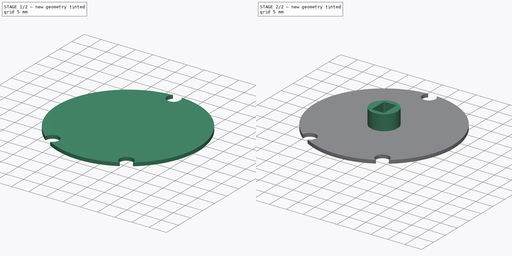
[diagram: build sequence overview — one tinted view per stage of 2, left to right]
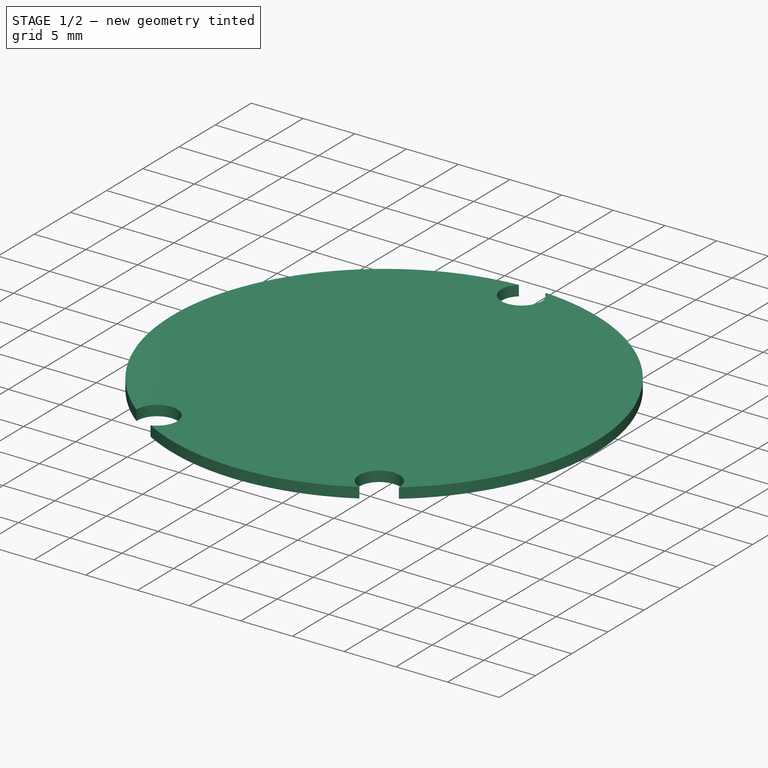
[diagram: stage 1 of 2 — iso view after this stage's code; geometry added in this stage tinted green]
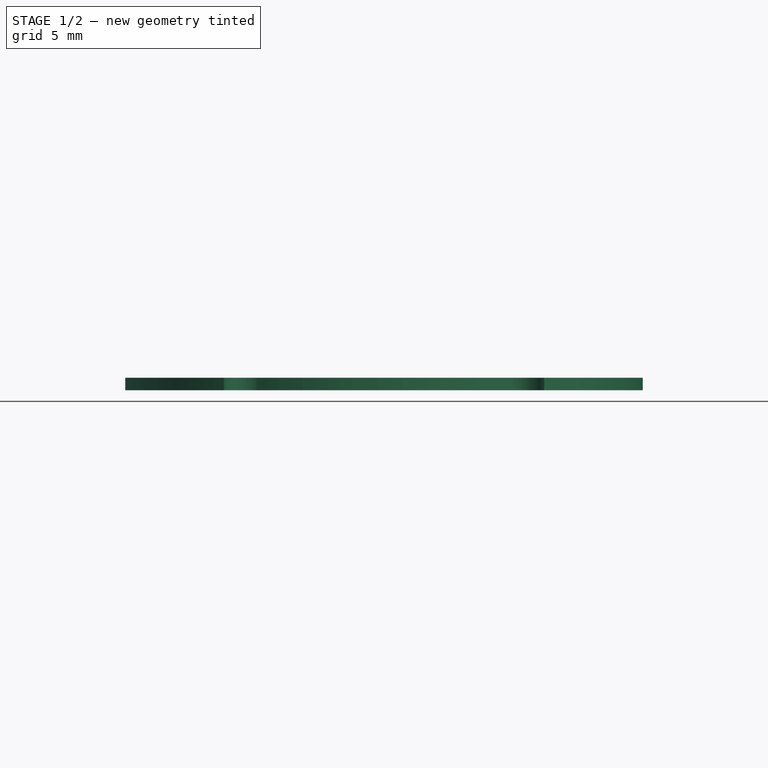
[diagram: stage 1 of 2 — front view after this stage's code; geometry added in this stage tinted green]
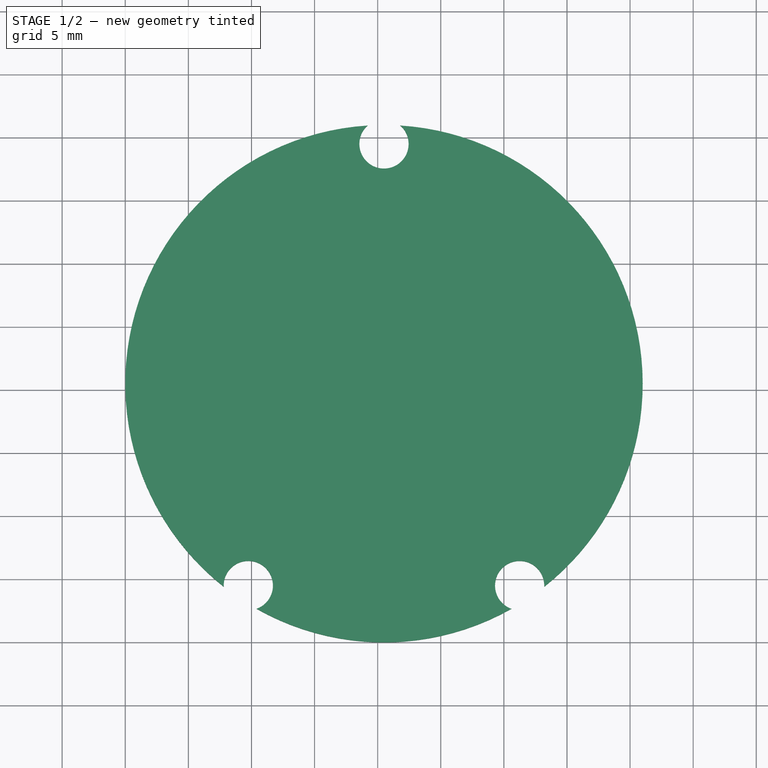
[diagram: stage 1 of 2 — top view after this stage's code; geometry added in this stage tinted green]
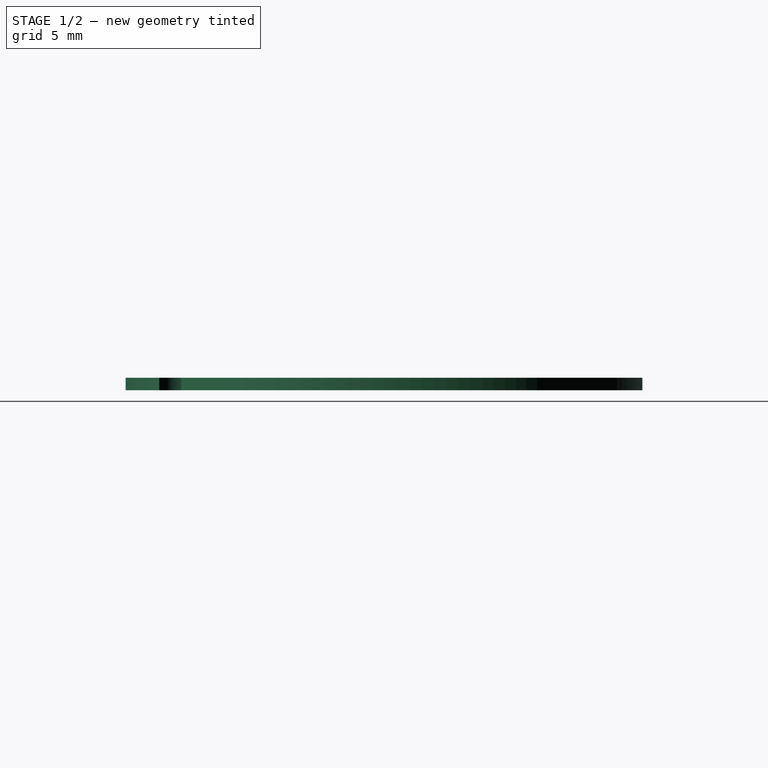
[diagram: stage 1 of 2 — right view after this stage's code; geometry added in this stage tinted green]
FCSTD DOCUMENT  (FreeCAD 1.0R39319 (Git))
Label: drive_shaft
License: All rights reserved
LicenseURL: http://en.wikipedia.org/wiki/All_rights_reserved
objects: Sketcher::SketchObject×4, PartDesign::Pad×2, Spreadsheet::Sheet×1, PartDesign::Hole×1, PartDesign::Pocket×1, PartDesign::Body×1
note: 21 computed .brp shape members not serialized (recipe doc carries the construction recipe); baked Part::Feature solids carry a one-line shape summary decoded from their .brp

FEATURE [Sketcher::SketchObject] Sketch  label="hub"
  ArcFitTolerance = 1e-06
  AttachmentSupport = -> [XY_Plane]
  FullyConstrained = true
  MakeInternals = false
  MapMode = 5
  expr: Constraints[0] = Spreadsheet.hub_diameter
  expr: Constraints[1] = Spreadsheet.hub_diameter / 2
  expr: Constraints[2] = Spreadsheet.hub_diameter / 2
  sketch-geometry (1):
    g0: Circle CenterX=20.5 CenterY=20.5 CenterZ=0 NormalX=0 NormalY=0 NormalZ=1 AngleXU=0 Radius=20.5
  constraints (3):
    c: Diameter(g0) = 41
    c: DistanceY(g-1,g0) = 20.5
    c: DistanceX(g-1,g0) = 20.5
FEATURE [Spreadsheet::Sheet] Spreadsheet
  cells = A2='hub_diameter; B2(hub_diameter)=41; A3='hex_lock_depth; B3(hex_lock_depth)=10.25; A4='hex_lock_y; B4(hex_lock_y)=6.6; A5='hex_lock_width; B5(hex_lock_x)=7.62; A6='mnt_hole_width; B6(mnt_hole_width)=21.5; A7='mnt_hole_height; B7(mnt_hole_height)=35; A8='mnt_hole_radius; B8(mnt_hole_radius)=1.5
FEATURE [Sketcher::SketchObject] Sketch002  label="mounting_screws"
  ArcFitTolerance = 1e-06
  AttachmentSupport = -> [XY_Plane]
  FullyConstrained = true
  MakeInternals = false
  MapMode = 5
  expr: Constraints[2] = Spreadsheet.mnt_hole_width
  expr: Constraints[3] = Spreadsheet.mnt_hole_height
  expr: Constraints[5] = Spreadsheet.mnt_hole_width / 2
  expr: Constraints[6] = Spreadsheet.mnt_hole_radius
  expr: Constraints[7] = Spreadsheet.hub_diameter - Spreadsheet.mnt_hole_radius
  expr: Constraints[8] = Spreadsheet.hub_diameter / 2
  sketch-geometry (3):
    g0: Circle CenterX=9.75 CenterY=4.5 CenterZ=0 NormalX=0 NormalY=0 NormalZ=1 AngleXU=0 Radius=1.5
    g1: Circle CenterX=31.25 CenterY=4.5 CenterZ=0 NormalX=0 NormalY=0 NormalZ=1 AngleXU=0 Radius=1.5
    g2: Circle CenterX=20.5 CenterY=39.5 CenterZ=0 NormalX=0 NormalY=0 NormalZ=1 AngleXU=0 Radius=1.5
  constraints (9):
    c: Equal(g2,g1)
    c: Equal(g1,g0)
    c: DistanceX(g0,g1) = 21.5
    c: DistanceY(g0,g2) = 35
    c: Horizontal(g0,g1)
    c: DistanceX(g0,g2) = 10.75
    c: Radius(g0) = 1.5
    c: DistanceY(g-1,g2) = 39.5
    c: DistanceX(g-1,g2) = 20.5
FEATURE [Sketcher::SketchObject] Sketch003  label="center_shaft"
  ArcFitTolerance = 1e-06
  AttachmentSupport = -> [XY_Plane]
  FullyConstrained = true
  MakeInternals = false
  MapMode = 5
  expr: Constraints[0] = 8
  expr: Constraints[1] = Spreadsheet.hub_diameter / 2
  expr: Constraints[2] = Spreadsheet.hub_diameter / 2
  sketch-geometry (1):
    g0: Circle CenterX=20.5 CenterY=20.5 CenterZ=0 NormalX=0 NormalY=0 NormalZ=1 AngleXU=0 Radius=4
  constraints (3):
    c: Diameter(g0) = 8
    c: DistanceY(g-1,g0) = 20.5
    c: DistanceX(g-1,g0) = 20.5
FEATURE [PartDesign::Pad] Pad
  Direction = (0,0,1)
  Length = 1
  Length2 = 10
  Profile = -> Sketch
  ReferenceAxis = -> Sketch [N_Axis]
  Suppressed = false
  Type = 0
  expr: Length = 1 mm
FEATURE [PartDesign::Hole] Hole
  BaseFeature = -> Pad
  CustomThreadClearance = 0
  Depth = 117.143
  DepthType = 1
  Diameter = 3.9
  DrillForDepth = false
  DrillPoint = 1
  DrillPointAngle = 118
  HoleCutCountersinkAngle = 90
  HoleCutCustomValues = false
  HoleCutDepth = 0
  HoleCutDiameter = 6.1
  HoleCutType = 0
  ModelThread = false
  Profile = -> Sketch002
  Reversed = true
  Suppressed = false
  Tapered = false
  TaperedAngle = 90
  ThreadClass = 0
  ThreadDepth = 117.143
  ThreadDepthType = 0
  ThreadDirection = 0
  ThreadFit = 0
  ThreadSize = 10
  ThreadType = 1
  Threaded = false
  UseCustomThreadClearance = false
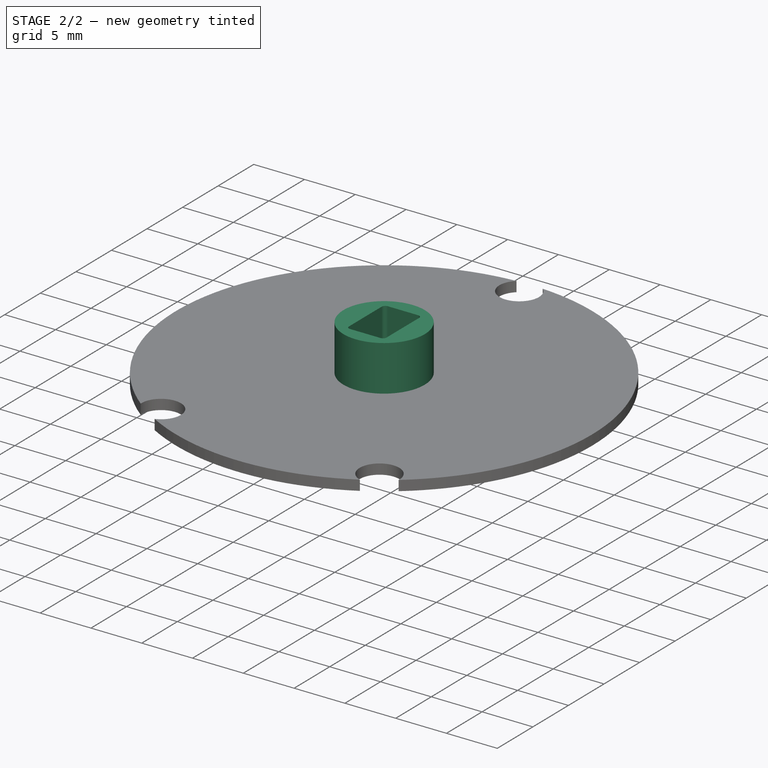
[diagram: stage 2 of 2 — iso view after this stage's code; geometry added in this stage tinted green]
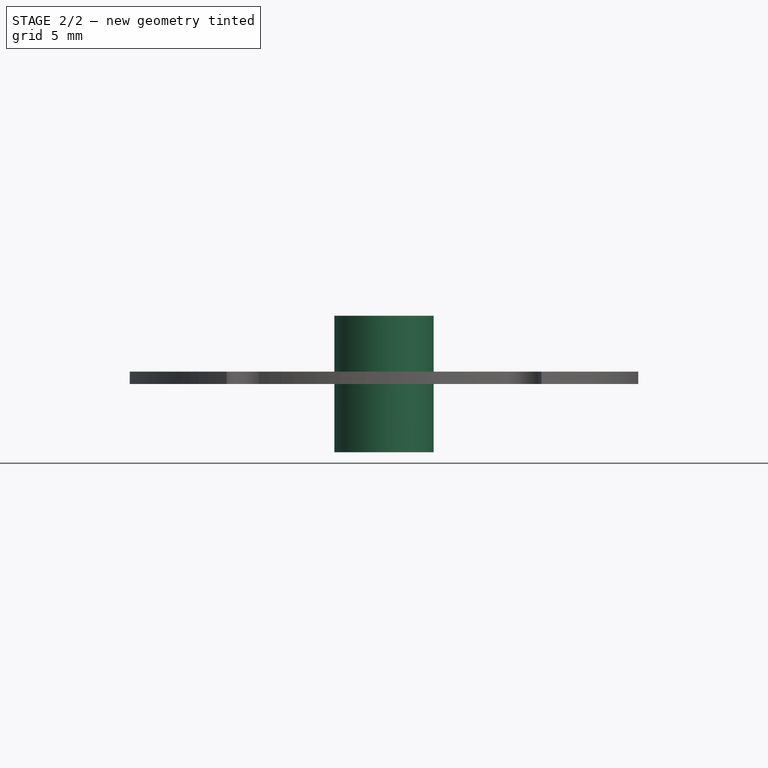
[diagram: stage 2 of 2 — front view after this stage's code; geometry added in this stage tinted green]
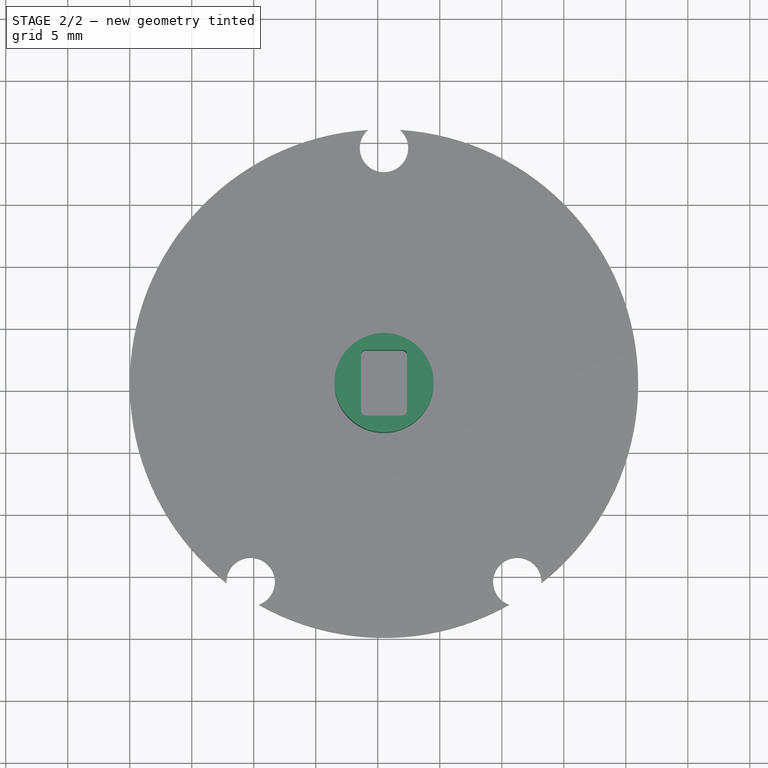
[diagram: stage 2 of 2 — top view after this stage's code; geometry added in this stage tinted green]
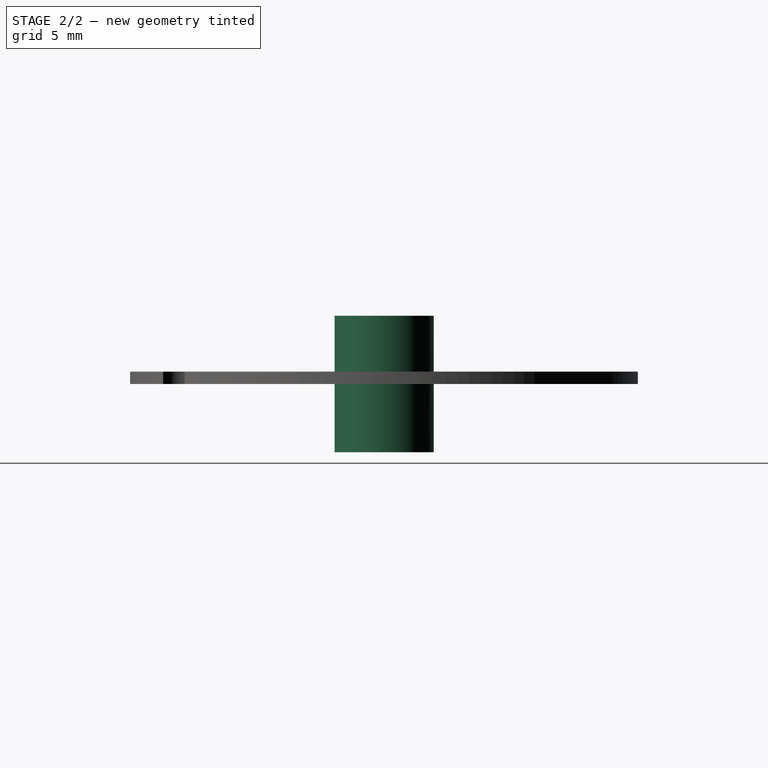
[diagram: stage 2 of 2 — right view after this stage's code; geometry added in this stage tinted green]
FEATURE [PartDesign::Pad] Pad001
  BaseFeature = -> Hole
  Direction = (0,0,1)
  Length = 11
  Length2 = 10
  Midplane = true
  Profile = -> Sketch003
  ReferenceAxis = -> Sketch003 [N_Axis]
  Suppressed = false
  Type = 0
  expr: Length = 8 + 3
FEATURE [Sketcher::SketchObject] Sketch004
  ArcFitTolerance = 1e-06
  AttachmentSupport = -> [XY_Plane]
  FullyConstrained = true
  MakeInternals = false
  MapMode = 5
  expr: Constraints[25] = 3.7
  expr: Constraints[26] = Spreadsheet.hub_diameter / 2 - 3.7 / 2
  expr: Constraints[27] = Spreadsheet.hub_diameter / 2 - 5.3 / 2
  sketch-geometry (12):
    g0: LineSegment StartX=18.65 StartY=22.7964 StartZ=0 EndX=18.65 EndY=18.2036 EndZ=0
    g1: LineSegment StartX=19.0036 StartY=17.85 StartZ=0 EndX=21.9964 EndY=17.85 EndZ=0
    g2: LineSegment StartX=22.35 StartY=18.2036 StartZ=0 EndX=22.35 EndY=22.7964 EndZ=0
    g3: LineSegment StartX=21.9964 StartY=23.15 StartZ=0 EndX=19.0036 EndY=23.15 EndZ=0
    g4: ArcOfCircle CenterX=21.9964 CenterY=18.2036 CenterZ=0 NormalX=0 NormalY=0 NormalZ=1 AngleXU=0 Radius=0.353553 StartAngle=4.71239 EndAngle=6.28319
    g5: GeomPoint [constr] X=22.35 Y=17.85 Z=0
    g6: ArcOfCircle CenterX=21.9964 CenterY=22.7964 CenterZ=0 NormalX=0 NormalY=0 NormalZ=1 AngleXU=0 Radius=0.353553 StartAngle=1.001e-13 EndAngle=1.5708
    g7: GeomPoint [constr] X=22.35 Y=23.15 Z=0
    g8: ArcOfCircle CenterX=19.0036 CenterY=22.7964 CenterZ=0 NormalX=0 NormalY=0 NormalZ=1 AngleXU=0 Radius=0.353553 StartAngle=1.5708 EndAngle=3.14159
    g9: GeomPoint [constr] X=18.65 Y=23.15 Z=0
    g10: ArcOfCircle CenterX=19.0036 CenterY=18.2036 CenterZ=0 NormalX=0 NormalY=0 NormalZ=1 AngleXU=0 Radius=0.353553 StartAngle=3.14159 EndAngle=4.71239
    g11: GeomPoint [constr] X=18.65 Y=17.85 Z=0
  constraints (28):
    c: Vertical(g0)
    c: Vertical(g2)
    c: Horizontal(g1)
    c: Horizontal(g3)
    c: PointOnObject(g5,g1)
    c: PointOnObject(g5,g2)
    c: Tangent(g1,g4) = -1.5708
    c: Tangent(g2,g4) = -1.5708
    c: PointOnObject(g7,g3)
    c: PointOnObject(g7,g2)
    c: Tangent(g3,g6) = -1.5708
    c: Tangent(g2,g6) = -1.5708
    c: PointOnObject(g9,g3)
    c: PointOnObject(g9,g0)
    c: Tangent(g3,g8) = -1.5708
    c: Tangent(g0,g8) = -1.5708
    c: PointOnObject(g11,g0)
    c: PointOnObject(g11,g1)
    c: Tangent(g0,g10) = -1.5708
    c: Tangent(g1,g10) = -1.5708
    c: Distance(g0,g3) = 0.5
    c: Equal(g8,g6)
    c: Equal(g6,g4)
    c: Equal(g4,g10)
    c: DistanceY(g1,g3) = 5.3
    c: DistanceX(g0,g2) = 3.7
    c: DistanceX(g-1,g11) = 18.65
    c: DistanceY(g-1,g11) = 17.85
FEATURE [PartDesign::Pocket] Pocket
  BaseFeature = -> Pad001
  Direction = (0,0,-1)
  Length = 8
  Length2 = 5
  Profile = -> Sketch004
  ReferenceAxis = -> Sketch004 [N_Axis]
  Reversed = true
  Suppressed = false
  Type = 1
FEATURE [PartDesign::Body] Body
  AllowCompound = false
  Group = -> [Sketch,Sketch002,Sketch003,Pad,Hole,Pad001,Sketch004,Pocket]
  Origin = -> Origin
  Tip = -> Pocket
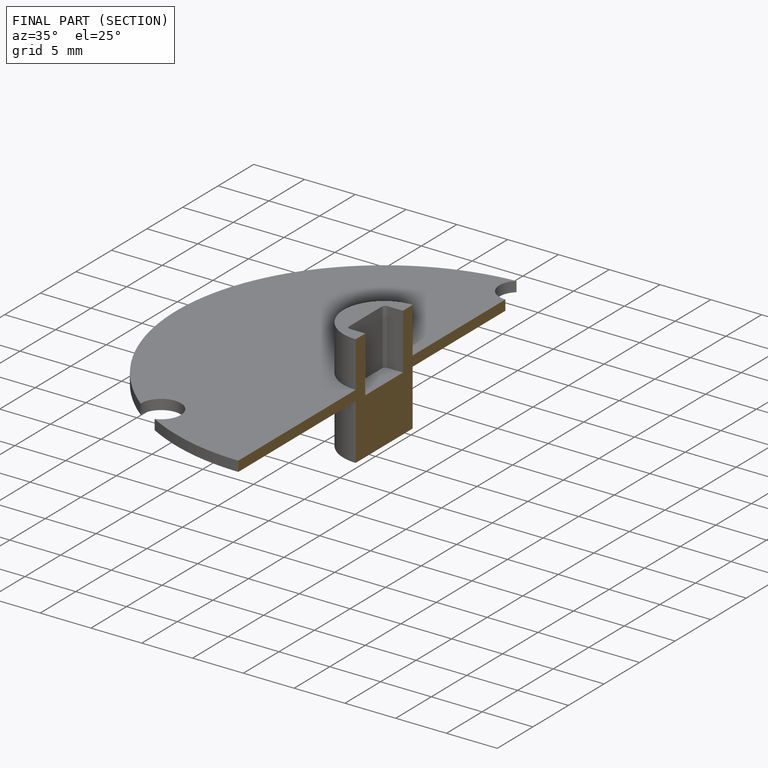
[diagram: finished part — half-section view (interior)]
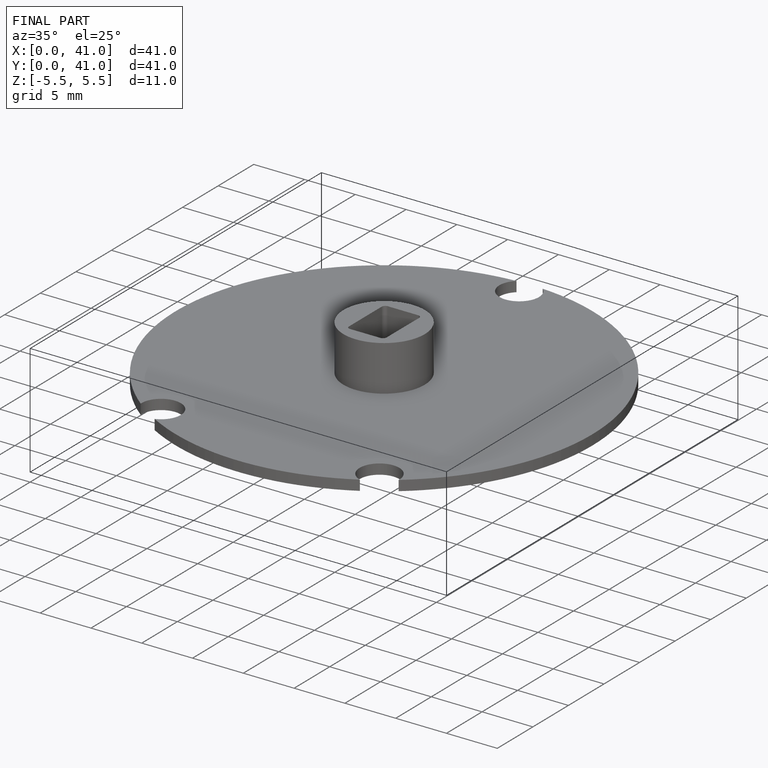
[diagram: finished part — iso view with bounding-box wireframe]
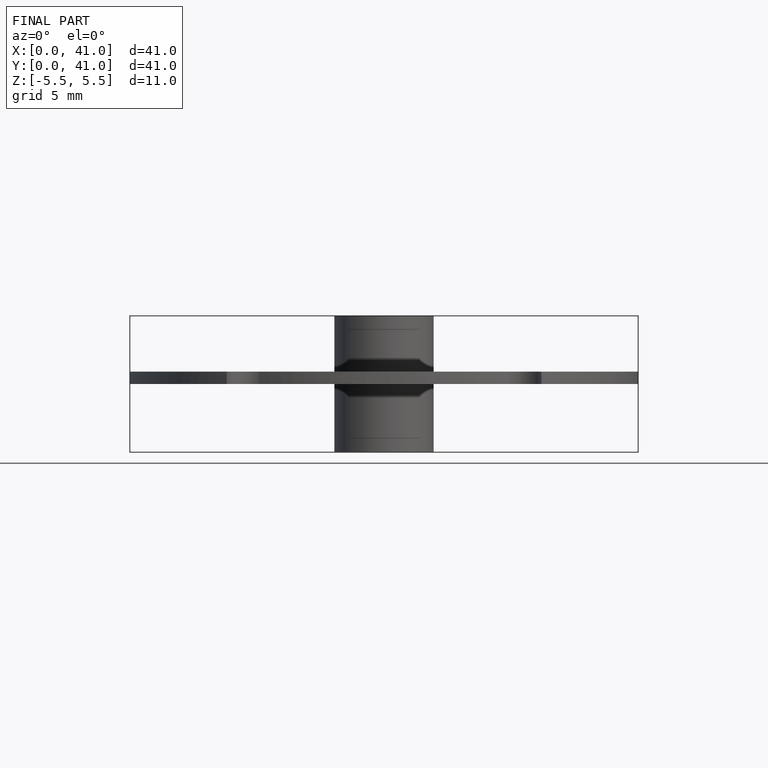
[diagram: finished part — front view with bounding-box wireframe]
